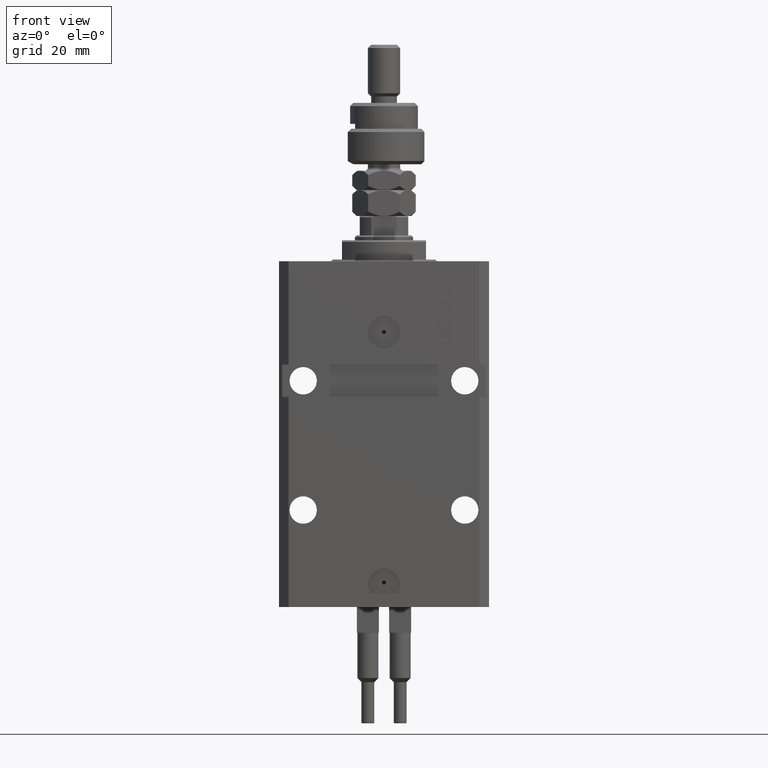
[diagram: clean part render]
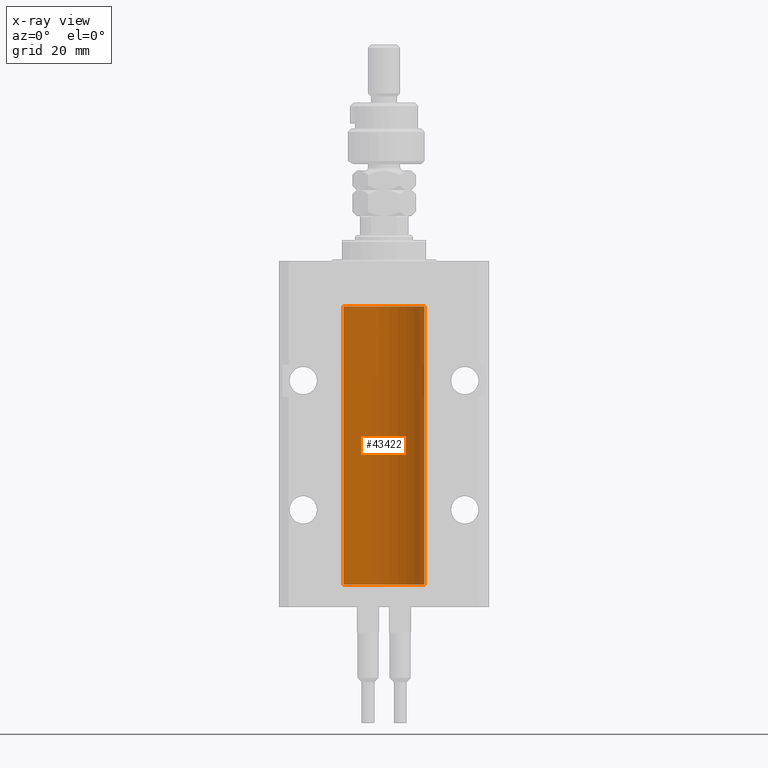
[diagram: x-ray — body ghosted, one internal face saturated and labeled with its STEP entity id]
A machine part, front view, then the same camera in x-ray: the body is ghosted and one INTERNAL B-rep face — a face not visible from any outside direction — is saturated and labeled: STEP entity #43422.
In plain terms, the highlighted cylindrical surface (partial cylindrical patch) has radius 12.5 mm, axis along (0, 0, 1).
Its self-contained STEP definition (entity closure, byte-faithful):
#67 = ORIENTED_EDGE ( 'NONE', *, *, #13281, .T. ) ;
#683 = CARTESIAN_POINT ( 'NONE',  ( 12.50000000000017941, 3.868073689162038701E-13, -94.37499999999640465 ) ) ;
#859 = DIRECTION ( 'NONE',  ( -0.000000000000000000, -0.000000000000000000, 1.000000000000000000 ) ) ;
#1007 = CARTESIAN_POINT ( 'NONE',  ( 12.48810305280568222, 0.5461368461738485003, -94.68525466142676805 ) ) ;
#1209 = VECTOR ( 'NONE', #36986, 1000.000000000000000 ) ;
#1499 = CARTESIAN_POINT ( 'NONE',  ( 12.50000000000000000, -1.836039810331332019E-15, -95.62500000000000000 ) ) ;
#1558 = CARTESIAN_POINT ( 'NONE',  ( 12.50000000000017941, 3.868073565084946818E-13, -21.37499999999641176 ) ) ;
#1658 = EDGE_CURVE ( 'NONE', #12659, #17891, #24752, .T. ) ;
#2114 = CARTESIAN_POINT ( 'NONE',  ( 12.48436522214846889, 0.6250000000078781426, -21.99999999999923261 ) ) ;
#2433 = ORIENTED_EDGE ( 'NONE', *, *, #26950, .T. ) ;
#2776 = VERTEX_POINT ( 'NONE', #50706 ) ;
#2903 = AXIS2_PLACEMENT_3D ( 'NONE', #21131, #16243, #32083 ) ;
#4523 = VERTEX_POINT ( 'NONE', #6329 ) ;
#4761 = EDGE_CURVE ( 'NONE', #17891, #5873, #37141, .T. ) ;
#4892 = CARTESIAN_POINT ( 'NONE',  ( 12.50000000000017941, 3.868073689162038701E-13, -94.37499999999640465 ) ) ;
#5873 = VERTEX_POINT ( 'NONE', #38662 ) ;
#6329 = CARTESIAN_POINT ( 'NONE',  ( 12.48436522214846711, 0.6250000000078848039, -94.99999999999923261 ) ) ;
#6770 = ORIENTED_EDGE ( 'NONE', *, *, #1658, .T. ) ;
#7165 = DIRECTION ( 'NONE',  ( -0.000000000000000000, -0.000000000000000000, 1.000000000000000000 ) ) ;
#8654 = CARTESIAN_POINT ( 'NONE',  ( 12.50000000000000000, 0.000000000000000000, -100.0999999999999943 ) ) ;
#9048 = CARTESIAN_POINT ( 'NONE',  ( 12.49915742890631876, 0.1636982395582385896, -95.60872397847028026 ) ) ;
#9433 = DIRECTION ( 'NONE',  ( 0.000000000000000000, 0.000000000000000000, 1.000000000000000000 ) ) ;
#9607 = CARTESIAN_POINT ( 'NONE',  ( 12.48436522214846889, 0.6250000000078781426, -21.99999999999923261 ) ) ;
#9744 = VECTOR ( 'NONE', #40613, 1000.000000000000000 ) ;
#10302 = VERTEX_POINT ( 'NONE', #14846 ) ;
#10479 = EDGE_CURVE ( 'NONE', #5873, #10302, #44166, .T. ) ;
#11052 = LINE ( 'NONE', #42739, #25398 ) ;
#12659 = VERTEX_POINT ( 'NONE', #683 ) ;
#12821 = DIRECTION ( 'NONE',  ( 1.000000000000000000, 0.000000000000000000, 0.000000000000000000 ) ) ;
#13281 = EDGE_CURVE ( 'NONE', #2776, #4523, #44813, .T. ) ;
#13487 = CYLINDRICAL_SURFACE ( 'NONE', #33309, 12.50000000000000000 ) ;
#13956 = CARTESIAN_POINT ( 'NONE',  ( 12.48436522214846711, 0.6250000000078848039, -94.99999999999923261 ) ) ;
#14015 = CARTESIAN_POINT ( 'NONE',  ( 12.49999999999999112, 0.1631389616600879555, -21.37500000000019185 ) ) ;
#14401 = VERTEX_POINT ( 'NONE', #22967 ) ;
#14672 = EDGE_CURVE ( 'NONE', #50416, #33482, #24079, .T. ) ;
#14846 = CARTESIAN_POINT ( 'NONE',  ( 12.50000000000017941, 3.868073565084946818E-13, -21.37499999999641176 ) ) ;
#15686 = DIRECTION ( 'NONE',  ( 1.000000000000000000, 0.000000000000000000, 0.000000000000000000 ) ) ;
#16057 = EDGE_CURVE ( 'NONE', #4523, #12659, #50848, .T. ) ;
#16243 = DIRECTION ( 'NONE',  ( 0.000000000000000000, 0.000000000000000000, 1.000000000000000000 ) ) ;
#17891 = VERTEX_POINT ( 'NONE', #39864 ) ;
#18816 = CARTESIAN_POINT ( 'NONE',  ( 12.50000000000000000, 0.000000000000000000, -13.99999999999999822 ) ) ;
#19971 = CARTESIAN_POINT ( 'NONE',  ( 12.49012055744648997, 0.5002956126656082914, -94.61641710202405875 ) ) ;
#20081 = CARTESIAN_POINT ( 'NONE',  ( 0.000000000000000000, 0.000000000000000000, -100.0999999999999943 ) ) ;
#20228 = CARTESIAN_POINT ( 'NONE',  ( 12.49631206032076136, 0.3252904079142934779, -94.44139700214928723 ) ) ;
#20592 = LINE ( 'NONE', #8654, #37203 ) ;
#20757 = VERTEX_POINT ( 'NONE', #18816 ) ;
#21131 = CARTESIAN_POINT ( 'NONE',  ( 0.000000000000000000, 0.000000000000000000, -13.99999999999999822 ) ) ;
#21596 = CARTESIAN_POINT ( 'NONE',  ( 12.49915742890631876, 0.1636982395582437522, -22.60872397847025539 ) ) ;
#21851 = CARTESIAN_POINT ( 'NONE',  ( 12.48436522214885969, 0.6250000000001448841, -22.16312747540307271 ) ) ;
#22060 = CARTESIAN_POINT ( 'NONE',  ( 12.49631206032075958, 0.3252904079142808214, -21.44139700214925526 ) ) ;
#22366 = CARTESIAN_POINT ( 'NONE',  ( 12.50000000000000000, -1.470318446642941360E-15, -22.62500000000000000 ) ) ;
#22967 = CARTESIAN_POINT ( 'NONE',  ( -12.50000000000000000, 1.530808498934191521E-15, -13.99999999999999822 ) ) ;
#23963 = CARTESIAN_POINT ( 'NONE',  ( -12.50000000000000000, 1.530808498934191521E-15, -100.0999999999999943 ) ) ;
#24079 = CIRCLE ( 'NONE', #48166, 12.50000000000000000 ) ;
#24367 = CARTESIAN_POINT ( 'NONE',  ( 12.49999999999999822, 0.1631389616600901760, -94.37500000000024158 ) ) ;
#24752 = LINE ( 'NONE', #48155, #9744 ) ;
#24881 = CARTESIAN_POINT ( 'NONE',  ( 12.49625698805481022, 0.3151108292486944906, -95.54593695688171806 ) ) ;
#25398 = VECTOR ( 'NONE', #7165, 1000.000000000000000 ) ;
#25955 = CARTESIAN_POINT ( 'NONE',  ( 12.48810305280568222, 0.5461368461738448365, -21.68525466142676805 ) ) ;
#26113 = CIRCLE ( 'NONE', #2903, 12.50000000000000000 ) ;
#26227 = EDGE_CURVE ( 'NONE', #33482, #14401, #41144, .T. ) ;
#26950 = EDGE_CURVE ( 'NONE', #20757, #14401, #26113, .T. ) ;
#28799 = CARTESIAN_POINT ( 'NONE',  ( 12.48520578595314845, 0.6087855079133740466, -94.83656717509346379 ) ) ;
#29089 = DIRECTION ( 'NONE',  ( -0.000000000000000000, -0.000000000000000000, 1.000000000000000000 ) ) ;
#29106 = EDGE_CURVE ( 'NONE', #10302, #20757, #11052, .T. ) ;
#29107 = CARTESIAN_POINT ( 'NONE',  ( 12.49012055744648997, 0.5002956126655976332, -21.61641710202404454 ) ) ;
#31602 = ORIENTED_EDGE ( 'NONE', *, *, #4761, .T. ) ;
#31935 = CARTESIAN_POINT ( 'NONE',  ( 12.48436522214888100, 0.6249999999996834754, -94.91847339462351840 ) ) ;
#32083 = DIRECTION ( 'NONE',  ( 1.000000000000000000, 0.000000000000000000, 0.000000000000000000 ) ) ;
#33239 = FACE_OUTER_BOUND ( 'NONE', #49989, .T. ) ;
#33309 = AXIS2_PLACEMENT_3D ( 'NONE', #20081, #29089, #15686 ) ;
#33482 = VERTEX_POINT ( 'NONE', #23963 ) ;
#33552 = CARTESIAN_POINT ( 'NONE',  ( 12.49625698805480667, 0.3151108292486967666, -22.54593695688170385 ) ) ;
#34071 = CARTESIAN_POINT ( 'NONE',  ( 12.48809900631782099, 0.5573988467445639694, -22.32640147935474317 ) ) ;
#34389 = EDGE_CURVE ( 'NONE', #50416, #2776, #20592, .T. ) ;
#36589 = CARTESIAN_POINT ( 'NONE',  ( 12.48436522214846711, 0.6250000000078848039, -94.99999999999923261 ) ) ;
#36986 = DIRECTION ( 'NONE',  ( -0.000000000000000000, -0.000000000000000000, 1.000000000000000000 ) ) ;
#37141 = B_SPLINE_CURVE_WITH_KNOTS ( 'NONE', 3,
 ( #22366, #41349, #21596, #33552, #49401, #34071, #21851, #2114 ),
 .UNSPECIFIED., .F., .F.,
 ( 4, 2, 2, 4 ),
 ( 2.576359803311334014E-18, 0.0002443481056285645150, 0.0004886962112571264279, 0.0009773924225142506875 ),
 .UNSPECIFIED. ) ;
#37203 = VECTOR ( 'NONE', #859, 1000.000000000000000 ) ;
#37590 = CARTESIAN_POINT ( 'NONE',  ( 12.48809900631782099, 0.5573988467445673001, -95.32640147935475738 ) ) ;
#37745 = CARTESIAN_POINT ( 'NONE',  ( -12.50000000000000000, 1.530808498934191521E-15, -100.0999999999999943 ) ) ;
#38662 = CARTESIAN_POINT ( 'NONE',  ( 12.48436522214846889, 0.6250000000078781426, -21.99999999999923261 ) ) ;
#39864 = CARTESIAN_POINT ( 'NONE',  ( 12.50000000000000000, -1.470318446642941360E-15, -22.62500000000000000 ) ) ;
#40208 = CARTESIAN_POINT ( 'NONE',  ( 12.50000000000000000, 0.000000000000000000, -100.0999999999999943 ) ) ;
#40613 = DIRECTION ( 'NONE',  ( -0.000000000000000000, -0.000000000000000000, 1.000000000000000000 ) ) ;
#40741 = CARTESIAN_POINT ( 'NONE',  ( 12.49999999999999822, 0.08262306818362624705, -95.62499999999998579 ) ) ;
#40985 = CARTESIAN_POINT ( 'NONE',  ( 12.49421963472024721, 0.3844519291903572555, -95.49947303647047647 ) ) ;
#41144 = LINE ( 'NONE', #37745, #1209 ) ;
#41349 = CARTESIAN_POINT ( 'NONE',  ( 12.49999999999999822, 0.08262306818362555316, -22.62499999999997513 ) ) ;
#42085 = ORIENTED_EDGE ( 'NONE', *, *, #26227, .F. ) ;
#42739 = CARTESIAN_POINT ( 'NONE',  ( 12.50000000000000000, 0.000000000000000000, -100.0999999999999943 ) ) ;
#43422 = ADVANCED_FACE ( 'NONE', ( #33239 ), #13487, .F. ) ;
#44166 = B_SPLINE_CURVE_WITH_KNOTS ( 'NONE', 3,
 ( #9607, #49353, #45701, #25955, #29107, #22060, #14015, #1558 ),
 .UNSPECIFIED., .F., .F.,
 ( 4, 2, 2, 4 ),
 ( 0.0009773924225142506875, 0.001221629287363794770, 0.001465866152213338852, 0.001954339881912434389 ),
 .UNSPECIFIED. ) ;
#44813 = B_SPLINE_CURVE_WITH_KNOTS ( 'NONE', 3,
 ( #1499, #40741, #9048, #24881, #40985, #37590, #45126, #13956 ),
 .UNSPECIFIED., .F., .F.,
 ( 4, 2, 2, 4 ),
 ( 1.784246692340212412E-18, 0.0002443481056285665750, 0.0004886962112571313068, 0.0009773924225142606621 ),
 .UNSPECIFIED. ) ;
#44865 = ORIENTED_EDGE ( 'NONE', *, *, #29106, .T. ) ;
#45015 = CARTESIAN_POINT ( 'NONE',  ( 0.000000000000000000, 0.000000000000000000, -100.0999999999999943 ) ) ;
#45126 = CARTESIAN_POINT ( 'NONE',  ( 12.48436522214885969, 0.6250000000001505462, -95.16312747540308692 ) ) ;
#45701 = CARTESIAN_POINT ( 'NONE',  ( 12.48520578595314845, 0.6087855079133684955, -21.83656717509346024 ) ) ;
#45773 = ORIENTED_EDGE ( 'NONE', *, *, #16057, .T. ) ;
#46031 = ORIENTED_EDGE ( 'NONE', *, *, #34389, .T. ) ;
#48155 = CARTESIAN_POINT ( 'NONE',  ( 12.50000000000000000, 0.000000000000000000, -100.0999999999999943 ) ) ;
#48166 = AXIS2_PLACEMENT_3D ( 'NONE', #45015, #9433, #12821 ) ;
#48622 = ORIENTED_EDGE ( 'NONE', *, *, #10479, .T. ) ;
#49213 = ORIENTED_EDGE ( 'NONE', *, *, #14672, .F. ) ;
#49353 = CARTESIAN_POINT ( 'NONE',  ( 12.48436522214888100, 0.6249999999996762590, -21.91847339462350774 ) ) ;
#49401 = CARTESIAN_POINT ( 'NONE',  ( 12.49421963472024366, 0.3844519291903583103, -22.49947303647044805 ) ) ;
#49989 = EDGE_LOOP ( 'NONE', ( #42085, #49213, #46031, #67, #45773, #6770, #31602, #48622, #44865, #2433 ) ) ;
#50416 = VERTEX_POINT ( 'NONE', #40208 ) ;
#50706 = CARTESIAN_POINT ( 'NONE',  ( 12.50000000000000000, -1.836039810331332019E-15, -95.62500000000000000 ) ) ;
#50848 = B_SPLINE_CURVE_WITH_KNOTS ( 'NONE', 3,
 ( #36589, #31935, #28799, #1007, #19971, #20228, #24367, #4892 ),
 .UNSPECIFIED., .F., .F.,
 ( 4, 2, 2, 4 ),
 ( 0.0009773924225142606621, 0.001221629287363811033, 0.001465866152213361404, 0.001954339881912461711 ),
 .UNSPECIFIED. ) ;